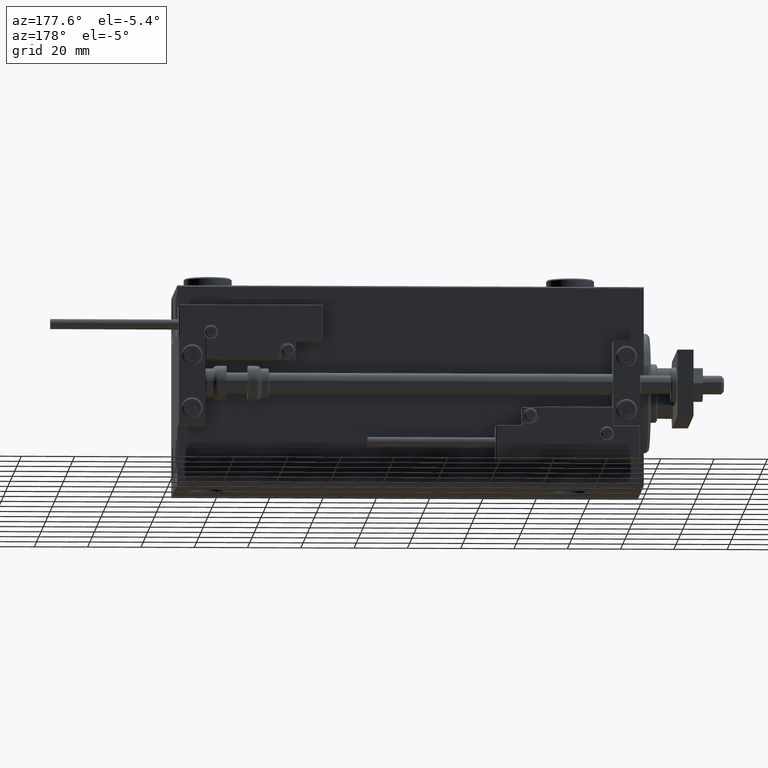
[diagram: clean part render]
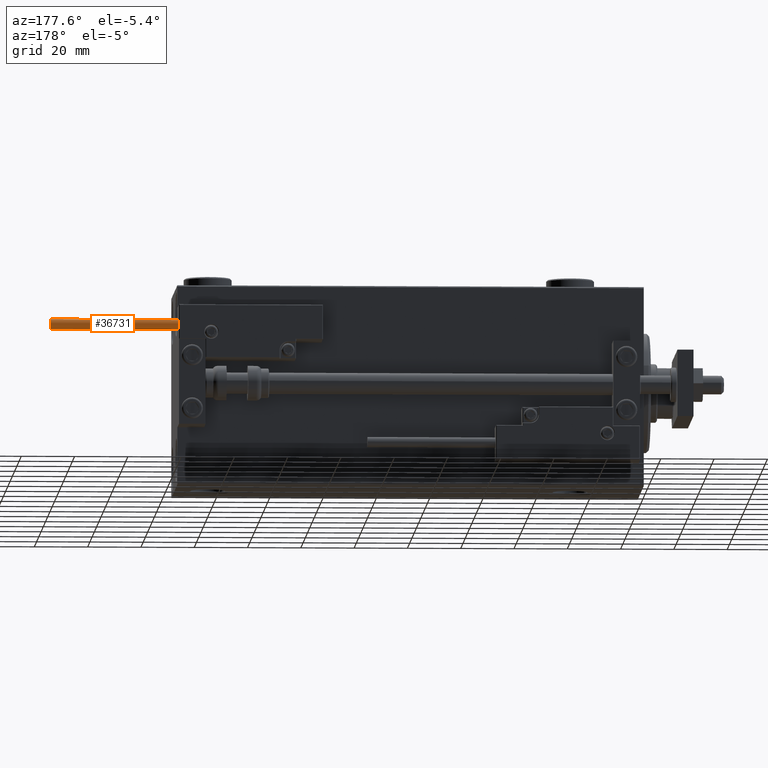
[diagram: same view with one face highlighted and labeled with its STEP entity id]
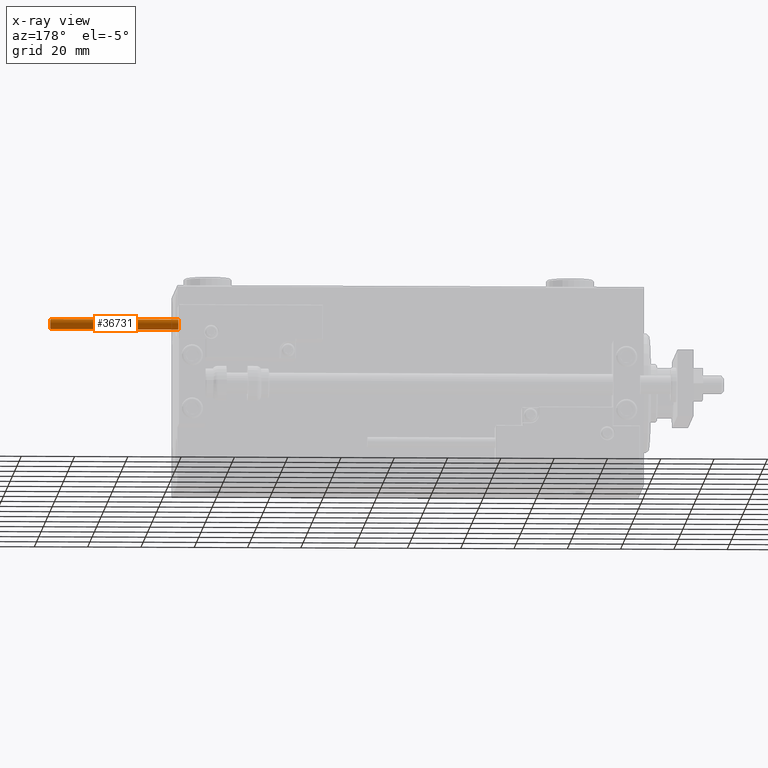
[diagram: x-ray of the same camera — body ghosted, the highlighted face saturated]
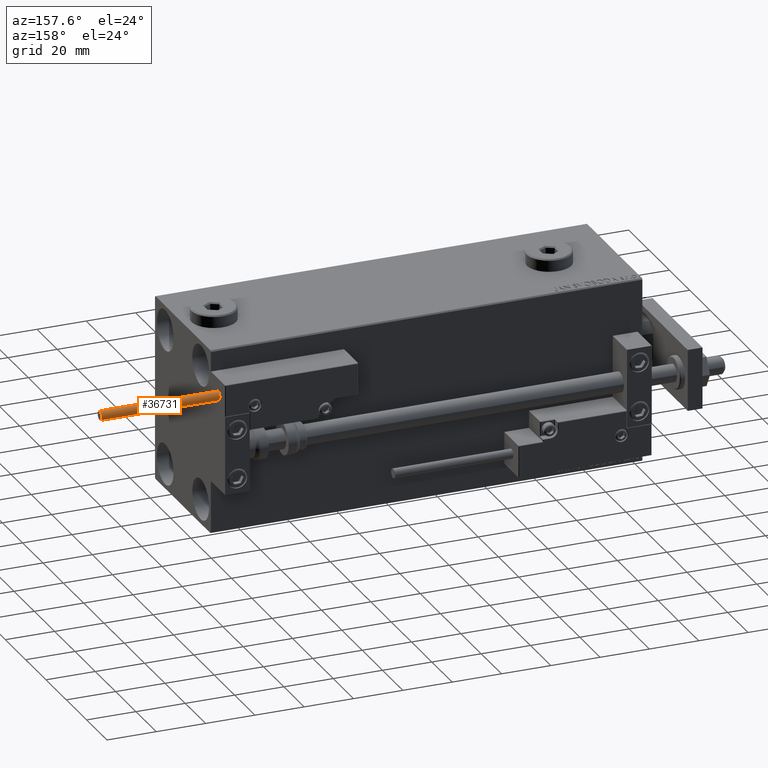
[diagram: same view with one face highlighted and labeled with its STEP entity id]
A machine part, auxiliary view. The second image highlights one B-rep face of the part: STEP entity #36731.
The next image is the same camera in x-ray: the body ghosted, the highlighted face saturated — about 0% of this face is hidden behind the body in this view.
A second angle (auxiliary view) of the same face is appended — the face is thin or edge-on in the first view.
In plain terms, the highlighted cylindrical surface (edge-blend (fillet) strip) has radius 1.9 mm, axis along (-1, -0, 0).
Its self-contained STEP definition (entity closure, byte-faithful):
#89 = CARTESIAN_POINT ( 'NONE',  ( -1.899999999999999467, 0.000000000000000000, 48.00000000000000000 ) ) ;
#749 = ORIENTED_EDGE ( 'NONE', *, *, #31688, .T. ) ;
#1025 = CIRCLE ( 'NONE', #30983, 1.899999999999999467 ) ;
#2729 = CARTESIAN_POINT ( 'NONE',  ( 0.000000000000000000, 0.000000000000000000, 48.00000000000000000 ) ) ;
#3251 = CARTESIAN_POINT ( 'NONE',  ( 1.899999999999999467, 2.326828918379970872E-16, 48.00000000000000000 ) ) ;
#4108 = EDGE_LOOP ( 'NONE', ( #15140, #749, #30792, #25548 ) ) ;
#5503 = CARTESIAN_POINT ( 'NONE',  ( 1.899999999999999467, 2.326828918379970872E-16, 48.00000000000000000 ) ) ;
#6039 = EDGE_CURVE ( 'NONE', #6157, #13815, #38668, .T. ) ;
#6157 = VERTEX_POINT ( 'NONE', #89 ) ;
#6392 = EDGE_CURVE ( 'NONE', #15507, #13815, #51438, .T. ) ;
#6438 = VECTOR ( 'NONE', #34767, 1000.000000000000000 ) ;
#6900 = DIRECTION ( 'NONE',  ( -1.000000000000000000, 0.000000000000000000, 0.000000000000000000 ) ) ;
#8893 = CARTESIAN_POINT ( 'NONE',  ( -1.899999999999999467, 0.000000000000000000, 0.000000000000000000 ) ) ;
#10283 = CYLINDRICAL_SURFACE ( 'NONE', #20880, 1.899999999999999467 ) ;
#11090 = CARTESIAN_POINT ( 'NONE',  ( 0.000000000000000000, 0.000000000000000000, 0.000000000000000000 ) ) ;
#13815 = VERTEX_POINT ( 'NONE', #8893 ) ;
#15140 = ORIENTED_EDGE ( 'NONE', *, *, #35689, .F. ) ;
#15507 = VERTEX_POINT ( 'NONE', #20885 ) ;
#15555 = DIRECTION ( 'NONE',  ( 1.000000000000000000, 0.000000000000000000, 0.000000000000000000 ) ) ;
#20880 = AXIS2_PLACEMENT_3D ( 'NONE', #2729, #38154, #6900 ) ;
#20885 = CARTESIAN_POINT ( 'NONE',  ( 1.899999999999999467, 2.326828918379970872E-16, 0.000000000000000000 ) ) ;
#22001 = FACE_OUTER_BOUND ( 'NONE', #4108, .T. ) ;
#23682 = VERTEX_POINT ( 'NONE', #3251 ) ;
#25548 = ORIENTED_EDGE ( 'NONE', *, *, #6039, .F. ) ;
#29213 = LINE ( 'NONE', #5503, #44949 ) ;
#30792 = ORIENTED_EDGE ( 'NONE', *, *, #6392, .T. ) ;
#30983 = AXIS2_PLACEMENT_3D ( 'NONE', #47869, #51507, #15555 ) ;
#31406 = DIRECTION ( 'NONE',  ( 0.000000000000000000, 0.000000000000000000, 1.000000000000000000 ) ) ;
#31688 = EDGE_CURVE ( 'NONE', #23682, #15507, #29213, .T. ) ;
#34767 = DIRECTION ( 'NONE',  ( -0.000000000000000000, -0.000000000000000000, -1.000000000000000000 ) ) ;
#35318 = DIRECTION ( 'NONE',  ( 1.000000000000000000, 0.000000000000000000, 0.000000000000000000 ) ) ;
#35689 = EDGE_CURVE ( 'NONE', #23682, #6157, #1025, .T. ) ;
#36731 = ADVANCED_FACE ( 'NONE', ( #22001 ), #10283, .T. ) ;
#37265 = AXIS2_PLACEMENT_3D ( 'NONE', #11090, #31406, #35318 ) ;
#38154 = DIRECTION ( 'NONE',  ( -0.000000000000000000, -0.000000000000000000, -1.000000000000000000 ) ) ;
#38668 = LINE ( 'NONE', #42581, #6438 ) ;
#41711 = DIRECTION ( 'NONE',  ( -0.000000000000000000, -0.000000000000000000, -1.000000000000000000 ) ) ;
#42581 = CARTESIAN_POINT ( 'NONE',  ( -1.899999999999999467, 0.000000000000000000, 48.00000000000000000 ) ) ;
#44949 = VECTOR ( 'NONE', #41711, 1000.000000000000000 ) ;
#47869 = CARTESIAN_POINT ( 'NONE',  ( 0.000000000000000000, 0.000000000000000000, 48.00000000000000000 ) ) ;
#51438 = CIRCLE ( 'NONE', #37265, 1.899999999999999467 ) ;
#51507 = DIRECTION ( 'NONE',  ( 0.000000000000000000, 0.000000000000000000, 1.000000000000000000 ) ) ;